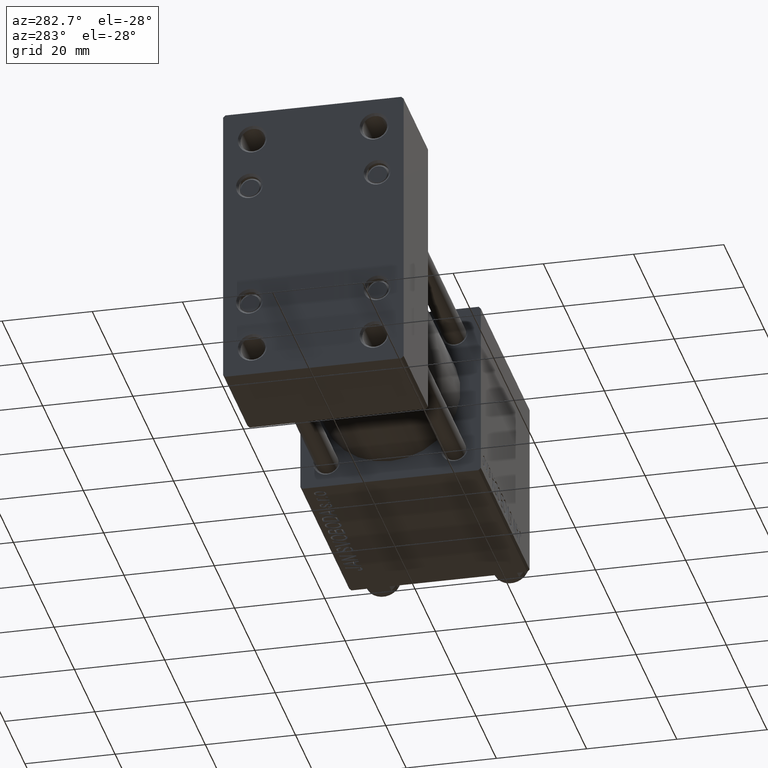
[diagram: clean part render]
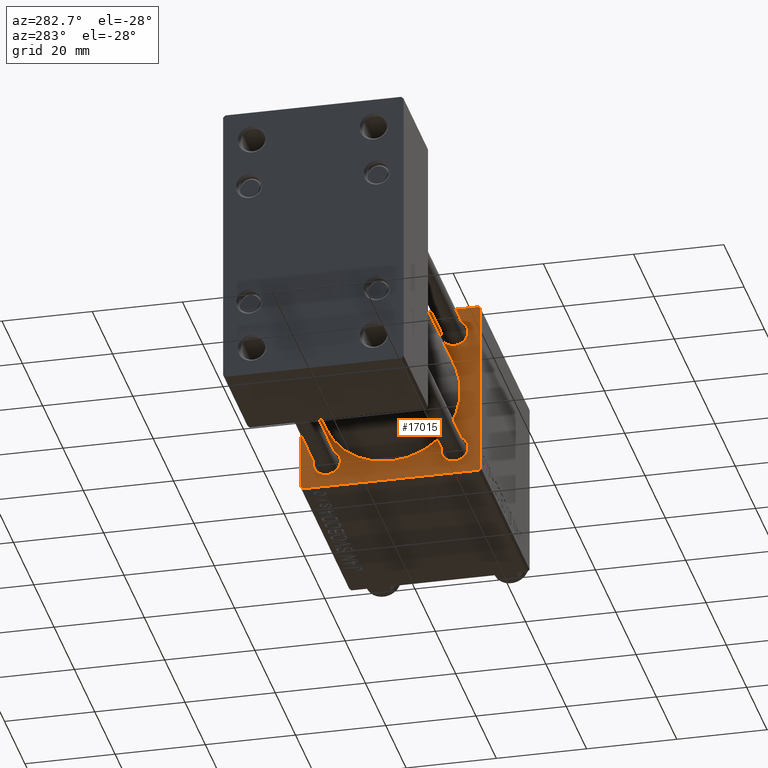
[diagram: same view with one face highlighted and labeled with its STEP entity id]
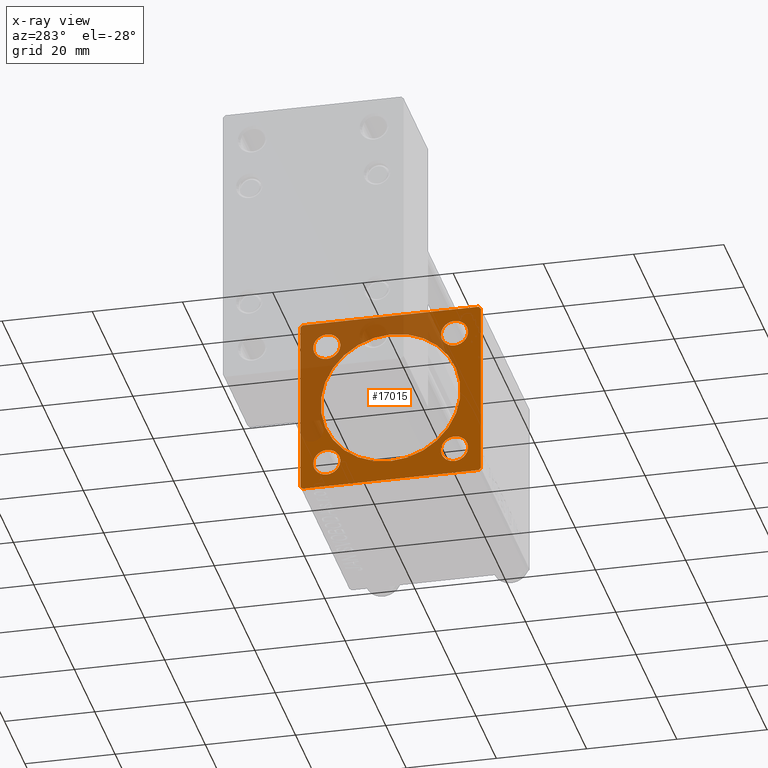
[diagram: x-ray of the same camera — body ghosted, the highlighted face saturated]
A machine part, auxiliary view. The second image highlights one B-rep face of the part: STEP entity #17015.
The next image is the same camera in x-ray: the body ghosted, the highlighted face saturated — about 39% of this face is hidden behind the body in this view.
In plain terms, the highlighted planar face has unit normal (-1, 0, 0).
Its self-contained STEP definition (entity closure, byte-faithful):
#467 = CARTESIAN_POINT ( 'NONE',  ( 76.00000000000000000, 14.15000000000000036, 14.15000000000000036 ) ) ;
#1278 = DIRECTION ( 'NONE',  ( 0.000000000000000000, 0.000000000000000000, 1.000000000000000000 ) ) ;
#1468 = EDGE_CURVE ( 'NONE', #36383, #38375, #20112, .T. ) ;
#1537 = DIRECTION ( 'NONE',  ( 0.000000000000000000, 0.000000000000000000, 1.000000000000000000 ) ) ;
#1585 = VERTEX_POINT ( 'NONE', #48366 ) ;
#1777 = CARTESIAN_POINT ( 'NONE',  ( 76.00000000000000000, -14.15000000000000036, 14.15000000000000036 ) ) ;
#2573 = EDGE_LOOP ( 'NONE', ( #4753, #47902 ) ) ;
#2826 = ORIENTED_EDGE ( 'NONE', *, *, #11737, .T. ) ;
#3186 = DIRECTION ( 'NONE',  ( 1.000000000000000000, 0.000000000000000000, 0.000000000000000000 ) ) ;
#3295 = CIRCLE ( 'NONE', #45199, 3.000000000000031974 ) ;
#4394 = EDGE_LOOP ( 'NONE', ( #17846, #27476 ) ) ;
#4564 = EDGE_CURVE ( 'NONE', #17067, #42760, #29073, .T. ) ;
#4707 = CARTESIAN_POINT ( 'NONE',  ( 76.00000000000000000, -20.00000000000000355, 19.99999999999999645 ) ) ;
#4725 = CARTESIAN_POINT ( 'NONE',  ( 76.00000000000000000, 14.15000000000000036, -14.15000000000000036 ) ) ;
#4753 = ORIENTED_EDGE ( 'NONE', *, *, #28797, .T. ) ;
#4972 = CARTESIAN_POINT ( 'NONE',  ( 76.00000000000000000, 14.15000000000000036, -14.15000000000000036 ) ) ;
#6050 = ORIENTED_EDGE ( 'NONE', *, *, #23975, .T. ) ;
#6415 = FACE_BOUND ( 'NONE', #8919, .T. ) ;
#6417 = EDGE_CURVE ( 'NONE', #48875, #17415, #9057, .T. ) ;
#6568 = CARTESIAN_POINT ( 'NONE',  ( 76.00000000000000000, 19.99999999999999645, 20.00000000000000000 ) ) ;
#6783 = DIRECTION ( 'NONE',  ( 0.000000000000000000, -0.7071067811865474617, 0.7071067811865474617 ) ) ;
#7186 = VECTOR ( 'NONE', #40324, 1000.000000000000000 ) ;
#7481 = DIRECTION ( 'NONE',  ( 0.000000000000000000, 0.000000000000000000, 1.000000000000000000 ) ) ;
#7607 = VERTEX_POINT ( 'NONE', #29291 ) ;
#7648 = EDGE_CURVE ( 'NONE', #36023, #38375, #33325, .T. ) ;
#8275 = DIRECTION ( 'NONE',  ( 0.000000000000000000, 0.000000000000000000, 1.000000000000000000 ) ) ;
#8461 = CIRCLE ( 'NONE', #23768, 2.999999999999962697 ) ;
#8919 = EDGE_LOOP ( 'NONE', ( #27225, #14329 ) ) ;
#9057 = CIRCLE ( 'NONE', #49344, 15.50000000000000000 ) ;
#9491 = VECTOR ( 'NONE', #29833, 1000.000000000000000 ) ;
#9787 = AXIS2_PLACEMENT_3D ( 'NONE', #10199, #44300, #40045 ) ;
#10199 = CARTESIAN_POINT ( 'NONE',  ( 76.00000000000000000, 0.000000000000000000, 0.000000000000000000 ) ) ;
#10377 = LINE ( 'NONE', #26274, #9491 ) ;
#10863 = AXIS2_PLACEMENT_3D ( 'NONE', #38805, #3186, #7481 ) ;
#10931 = EDGE_LOOP ( 'NONE', ( #16160, #12295 ) ) ;
#10976 = LINE ( 'NONE', #33233, #49712 ) ;
#11235 = CARTESIAN_POINT ( 'NONE',  ( 76.00000000000000000, 19.49999999999999645, -20.00000000000000000 ) ) ;
#11737 = EDGE_CURVE ( 'NONE', #36383, #26355, #47891, .T. ) ;
#12295 = ORIENTED_EDGE ( 'NONE', *, *, #37608, .T. ) ;
#12323 = CIRCLE ( 'NONE', #29169, 3.000000000000031974 ) ;
#12692 = VERTEX_POINT ( 'NONE', #22616 ) ;
#13329 = VERTEX_POINT ( 'NONE', #36928 ) ;
#13523 = FACE_BOUND ( 'NONE', #2573, .T. ) ;
#13986 = ORIENTED_EDGE ( 'NONE', *, *, #24041, .T. ) ;
#14329 = ORIENTED_EDGE ( 'NONE', *, *, #29144, .T. ) ;
#16044 = CARTESIAN_POINT ( 'NONE',  ( 76.00000000000000000, -14.15000000000000036, -14.15000000000000036 ) ) ;
#16160 = ORIENTED_EDGE ( 'NONE', *, *, #41308, .T. ) ;
#16539 = AXIS2_PLACEMENT_3D ( 'NONE', #467, #49956, #23694 ) ;
#16823 = DIRECTION ( 'NONE',  ( 0.000000000000000000, 8.673617379884036705E-17, -1.000000000000000000 ) ) ;
#17015 = ADVANCED_FACE ( 'NONE', ( #13523, #6415, #33209, #44787, #28922, #40292 ), #29177, .T. ) ;
#17067 = VERTEX_POINT ( 'NONE', #49086 ) ;
#17119 = AXIS2_PLACEMENT_3D ( 'NONE', #36643, #17427, #1537 ) ;
#17183 = VECTOR ( 'NONE', #17231, 1000.000000000000114 ) ;
#17231 = DIRECTION ( 'NONE',  ( -0.000000000000000000, -0.7071067811865474617, -0.7071067811865474617 ) ) ;
#17354 = CIRCLE ( 'NONE', #16539, 2.999999999999959144 ) ;
#17415 = VERTEX_POINT ( 'NONE', #27039 ) ;
#17427 = DIRECTION ( 'NONE',  ( 1.000000000000000000, 0.000000000000000000, 0.000000000000000000 ) ) ;
#17429 = ORIENTED_EDGE ( 'NONE', *, *, #42564, .F. ) ;
#17433 = DIRECTION ( 'NONE',  ( 0.000000000000000000, 0.000000000000000000, 1.000000000000000000 ) ) ;
#17744 = ORIENTED_EDGE ( 'NONE', *, *, #7648, .T. ) ;
#17846 = ORIENTED_EDGE ( 'NONE', *, *, #49711, .T. ) ;
#18093 = VERTEX_POINT ( 'NONE', #21774 ) ;
#18376 = EDGE_CURVE ( 'NONE', #43813, #13329, #22727, .T. ) ;
#18619 = CARTESIAN_POINT ( 'NONE',  ( 76.00000000000000000, -2.602085213965210642E-15, 0.000000000000000000 ) ) ;
#20110 = EDGE_CURVE ( 'NONE', #36639, #12692, #12323, .T. ) ;
#20112 = LINE ( 'NONE', #4707, #36280 ) ;
#20958 = CARTESIAN_POINT ( 'NONE',  ( 76.00000000000000000, 19.99999999999999645, -19.50000000000000000 ) ) ;
#20984 = DIRECTION ( 'NONE',  ( 1.000000000000000000, 0.000000000000000000, 0.000000000000000000 ) ) ;
#21021 = CARTESIAN_POINT ( 'NONE',  ( 76.00000000000000000, 19.74999999999999645, -19.74999999999999645 ) ) ;
#21482 = DIRECTION ( 'NONE',  ( 0.000000000000000000, 0.000000000000000000, -1.000000000000000000 ) ) ;
#21774 = CARTESIAN_POINT ( 'NONE',  ( 76.00000000000000000, 14.15000000000000036, 11.15000000000003944 ) ) ;
#22032 = VERTEX_POINT ( 'NONE', #35858 ) ;
#22491 = DIRECTION ( 'NONE',  ( 0.000000000000000000, 0.7071067811865376918, -0.7071067811865574537 ) ) ;
#22616 = CARTESIAN_POINT ( 'NONE',  ( 76.00000000000000000, 14.15000000000000036, -11.14999999999996838 ) ) ;
#22727 = CIRCLE ( 'NONE', #17119, 2.999999999999962697 ) ;
#23159 = DIRECTION ( 'NONE',  ( 0.000000000000000000, 0.000000000000000000, -1.000000000000000000 ) ) ;
#23694 = DIRECTION ( 'NONE',  ( 0.000000000000000000, 0.000000000000000000, 1.000000000000000000 ) ) ;
#23768 = AXIS2_PLACEMENT_3D ( 'NONE', #1777, #32601, #1278 ) ;
#23885 = EDGE_LOOP ( 'NONE', ( #36744, #17744, #34628, #2826, #17429, #13986, #27286, #6050 ) ) ;
#23975 = EDGE_CURVE ( 'NONE', #42760, #39173, #44719, .T. ) ;
#24041 = EDGE_CURVE ( 'NONE', #7607, #17067, #33874, .T. ) ;
#24289 = CARTESIAN_POINT ( 'NONE',  ( 76.00000000000000000, -7.038826752868134786E-16, -15.50000000000000000 ) ) ;
#25015 = CARTESIAN_POINT ( 'NONE',  ( 76.00000000000000000, -14.15000000000000036, 11.15000000000003944 ) ) ;
#26274 = CARTESIAN_POINT ( 'NONE',  ( 76.00000000000000000, 19.99999999999999645, 20.00000000000000000 ) ) ;
#26355 = VERTEX_POINT ( 'NONE', #41376 ) ;
#27039 = CARTESIAN_POINT ( 'NONE',  ( 76.00000000000000000, -2.602085213965210642E-15, 15.50000000000000000 ) ) ;
#27127 = CIRCLE ( 'NONE', #36022, 3.000000000000031974 ) ;
#27199 = DIRECTION ( 'NONE',  ( 1.000000000000000000, 0.000000000000000000, 0.000000000000000000 ) ) ;
#27225 = ORIENTED_EDGE ( 'NONE', *, *, #28046, .T. ) ;
#27286 = ORIENTED_EDGE ( 'NONE', *, *, #4564, .T. ) ;
#27476 = ORIENTED_EDGE ( 'NONE', *, *, #20110, .T. ) ;
#27858 = CARTESIAN_POINT ( 'NONE',  ( 76.00000000000000000, -14.15000000000000036, -11.14999999999996838 ) ) ;
#28046 = EDGE_CURVE ( 'NONE', #1585, #18093, #48747, .T. ) ;
#28464 = DIRECTION ( 'NONE',  ( 0.000000000000000000, 0.000000000000000000, 1.000000000000000000 ) ) ;
#28708 = CARTESIAN_POINT ( 'NONE',  ( 76.00000000000000000, -19.75000000000027711, 19.74999999999973355 ) ) ;
#28797 = EDGE_CURVE ( 'NONE', #13329, #43813, #8461, .T. ) ;
#28922 = FACE_BOUND ( 'NONE', #38005, .T. ) ;
#29073 = LINE ( 'NONE', #6568, #29150 ) ;
#29144 = EDGE_CURVE ( 'NONE', #18093, #1585, #17354, .T. ) ;
#29150 = VECTOR ( 'NONE', #21482, 1000.000000000000000 ) ;
#29169 = AXIS2_PLACEMENT_3D ( 'NONE', #4725, #27199, #8275 ) ;
#29177 = PLANE ( 'NONE',  #9787 ) ;
#29291 = CARTESIAN_POINT ( 'NONE',  ( 76.00000000000000000, 19.49999999999998224, 20.00000000000000000 ) ) ;
#29833 = DIRECTION ( 'NONE',  ( 0.000000000000000000, -1.000000000000000000, -8.673617379884035472E-17 ) ) ;
#30584 = CARTESIAN_POINT ( 'NONE',  ( 76.00000000000000000, 19.75000000000026290, 19.74999999999971578 ) ) ;
#30640 = VERTEX_POINT ( 'NONE', #27858 ) ;
#30974 = VECTOR ( 'NONE', #6783, 1000.000000000000114 ) ;
#31201 = DIRECTION ( 'NONE',  ( 1.000000000000000000, 0.000000000000000000, 0.000000000000000000 ) ) ;
#31444 = DIRECTION ( 'NONE',  ( 0.000000000000000000, 0.000000000000000000, 1.000000000000000000 ) ) ;
#32601 = DIRECTION ( 'NONE',  ( 1.000000000000000000, 0.000000000000000000, 0.000000000000000000 ) ) ;
#33209 = FACE_BOUND ( 'NONE', #4394, .T. ) ;
#33233 = CARTESIAN_POINT ( 'NONE',  ( 76.00000000000000000, 19.99999999999999645, -20.00000000000000000 ) ) ;
#33325 = LINE ( 'NONE', #49199, #30974 ) ;
#33874 = LINE ( 'NONE', #30584, #49423 ) ;
#34628 = ORIENTED_EDGE ( 'NONE', *, *, #1468, .F. ) ;
#35146 = CARTESIAN_POINT ( 'NONE',  ( 76.00000000000000000, 14.15000000000000036, -17.15000000000003411 ) ) ;
#35363 = CARTESIAN_POINT ( 'NONE',  ( 76.00000000000000000, -2.602085213965210642E-15, 0.000000000000000000 ) ) ;
#35858 = CARTESIAN_POINT ( 'NONE',  ( 76.00000000000000000, -14.15000000000000036, -17.15000000000003411 ) ) ;
#36022 = AXIS2_PLACEMENT_3D ( 'NONE', #43960, #20984, #17433 ) ;
#36023 = VERTEX_POINT ( 'NONE', #39310 ) ;
#36280 = VECTOR ( 'NONE', #16823, 1000.000000000000000 ) ;
#36383 = VERTEX_POINT ( 'NONE', #46800 ) ;
#36639 = VERTEX_POINT ( 'NONE', #35146 ) ;
#36643 = CARTESIAN_POINT ( 'NONE',  ( 76.00000000000000000, -14.15000000000000036, 14.15000000000000036 ) ) ;
#36744 = ORIENTED_EDGE ( 'NONE', *, *, #39105, .T. ) ;
#36789 = DIRECTION ( 'NONE',  ( 1.000000000000000000, 0.000000000000000000, 0.000000000000000000 ) ) ;
#36928 = CARTESIAN_POINT ( 'NONE',  ( 76.00000000000000000, -14.15000000000000036, 17.14999999999996305 ) ) ;
#37608 = EDGE_CURVE ( 'NONE', #22032, #30640, #27127, .T. ) ;
#37698 = CIRCLE ( 'NONE', #45745, 3.000000000000031974 ) ;
#38005 = EDGE_LOOP ( 'NONE', ( #43413, #43046 ) ) ;
#38375 = VERTEX_POINT ( 'NONE', #47503 ) ;
#38408 = DIRECTION ( 'NONE',  ( 1.000000000000000000, 0.000000000000000000, 0.000000000000000000 ) ) ;
#38658 = DIRECTION ( 'NONE',  ( 0.000000000000000000, 0.000000000000000000, -1.000000000000000000 ) ) ;
#38805 = CARTESIAN_POINT ( 'NONE',  ( 76.00000000000000000, 14.15000000000000036, 14.15000000000000036 ) ) ;
#39105 = EDGE_CURVE ( 'NONE', #39173, #36023, #10976, .T. ) ;
#39173 = VERTEX_POINT ( 'NONE', #11235 ) ;
#39310 = CARTESIAN_POINT ( 'NONE',  ( 76.00000000000000000, -19.50000000000002487, -20.00000000000000000 ) ) ;
#40045 = DIRECTION ( 'NONE',  ( -0.000000000000000000, 0.000000000000000000, 1.000000000000000000 ) ) ;
#40292 = FACE_OUTER_BOUND ( 'NONE', #23885, .T. ) ;
#40324 = DIRECTION ( 'NONE',  ( -0.000000000000000000, 0.7071067811865378028, 0.7071067811865573427 ) ) ;
#41308 = EDGE_CURVE ( 'NONE', #30640, #22032, #37698, .T. ) ;
#41376 = CARTESIAN_POINT ( 'NONE',  ( 76.00000000000000000, -19.50000000000001776, 19.99999999999999645 ) ) ;
#41847 = DIRECTION ( 'NONE',  ( 1.000000000000000000, 0.000000000000000000, 0.000000000000000000 ) ) ;
#42564 = EDGE_CURVE ( 'NONE', #7607, #26355, #10377, .T. ) ;
#42760 = VERTEX_POINT ( 'NONE', #20958 ) ;
#43046 = ORIENTED_EDGE ( 'NONE', *, *, #6417, .T. ) ;
#43413 = ORIENTED_EDGE ( 'NONE', *, *, #45470, .T. ) ;
#43813 = VERTEX_POINT ( 'NONE', #25015 ) ;
#43960 = CARTESIAN_POINT ( 'NONE',  ( 76.00000000000000000, -14.15000000000000036, -14.15000000000000036 ) ) ;
#44300 = DIRECTION ( 'NONE',  ( -1.000000000000000000, 0.000000000000000000, -0.000000000000000000 ) ) ;
#44719 = LINE ( 'NONE', #21021, #17183 ) ;
#44787 = FACE_BOUND ( 'NONE', #10931, .T. ) ;
#45088 = CIRCLE ( 'NONE', #47535, 15.50000000000000000 ) ;
#45199 = AXIS2_PLACEMENT_3D ( 'NONE', #4972, #36789, #28464 ) ;
#45470 = EDGE_CURVE ( 'NONE', #17415, #48875, #45088, .T. ) ;
#45745 = AXIS2_PLACEMENT_3D ( 'NONE', #16044, #31201, #31444 ) ;
#46800 = CARTESIAN_POINT ( 'NONE',  ( 76.00000000000000000, -20.00000000000000355, 19.49999999999999645 ) ) ;
#47503 = CARTESIAN_POINT ( 'NONE',  ( 76.00000000000000000, -20.00000000000000000, -19.50000000000002487 ) ) ;
#47535 = AXIS2_PLACEMENT_3D ( 'NONE', #18619, #41847, #23159 ) ;
#47891 = LINE ( 'NONE', #28708, #7186 ) ;
#47902 = ORIENTED_EDGE ( 'NONE', *, *, #18376, .T. ) ;
#48366 = CARTESIAN_POINT ( 'NONE',  ( 76.00000000000000000, 14.15000000000000036, 17.14999999999996305 ) ) ;
#48620 = DIRECTION ( 'NONE',  ( 0.000000000000000000, -1.000000000000000000, 0.000000000000000000 ) ) ;
#48747 = CIRCLE ( 'NONE', #10863, 2.999999999999959144 ) ;
#48875 = VERTEX_POINT ( 'NONE', #24289 ) ;
#49086 = CARTESIAN_POINT ( 'NONE',  ( 76.00000000000000000, 19.99999999999999645, 19.49999999999997158 ) ) ;
#49199 = CARTESIAN_POINT ( 'NONE',  ( 76.00000000000000000, -19.75000000000001066, -19.75000000000001066 ) ) ;
#49344 = AXIS2_PLACEMENT_3D ( 'NONE', #35363, #38408, #38658 ) ;
#49423 = VECTOR ( 'NONE', #22491, 999.9999999999998863 ) ;
#49711 = EDGE_CURVE ( 'NONE', #12692, #36639, #3295, .T. ) ;
#49712 = VECTOR ( 'NONE', #48620, 1000.000000000000000 ) ;
#49956 = DIRECTION ( 'NONE',  ( 1.000000000000000000, 0.000000000000000000, 0.000000000000000000 ) ) ;